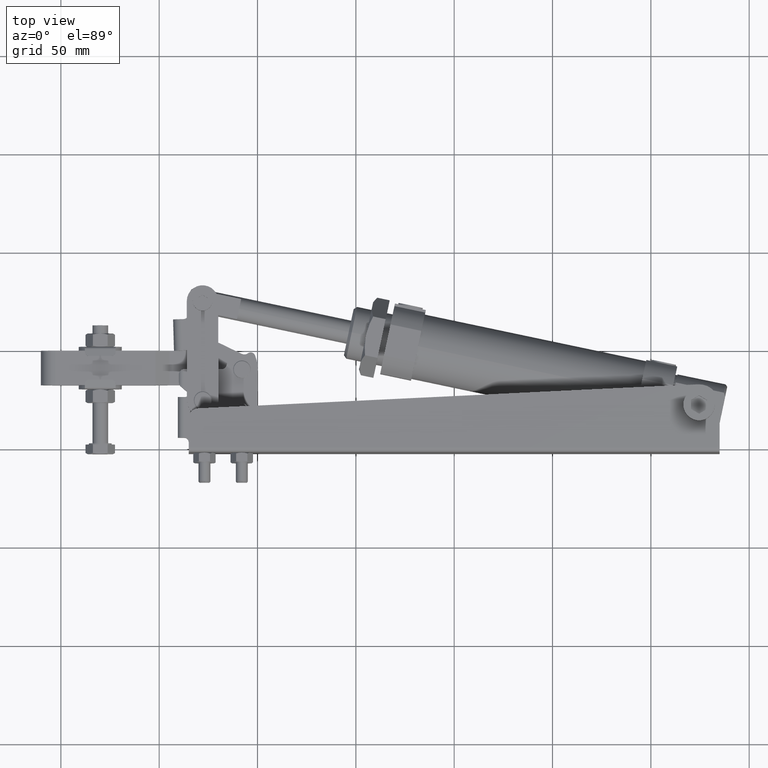
[diagram: clean part render]
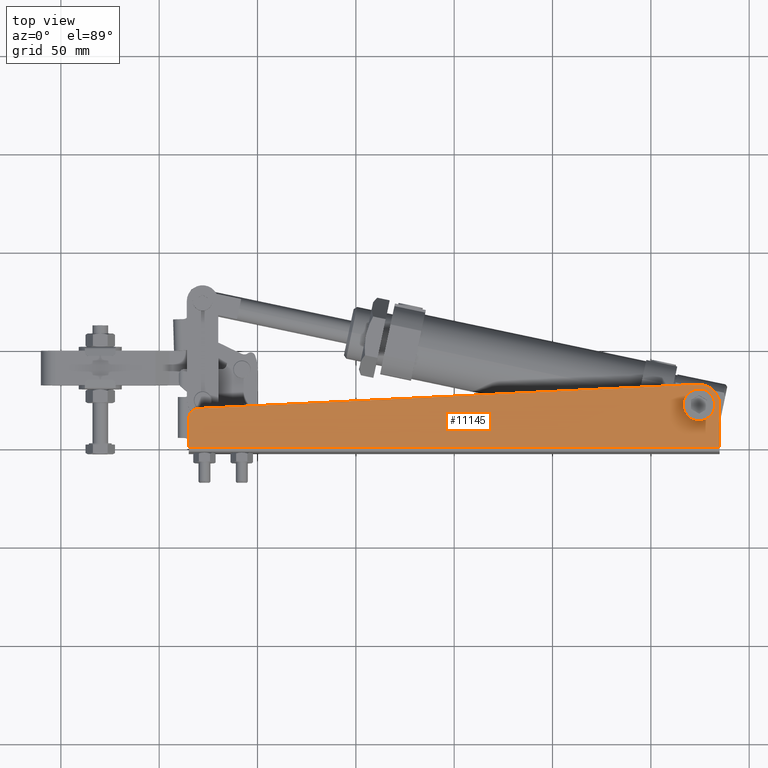
[diagram: same view with one face highlighted and labeled with its STEP entity id]
A machine part, top view. The second image highlights one B-rep face of the part: STEP entity #11145.
In plain terms, the highlighted planar face has unit normal (0, -0, 1).
Its self-contained STEP definition (entity closure, byte-faithful):
#187 = AXIS2_PLACEMENT_3D ( 'NONE', #20374, #8923, #22307 ) ;
#282 = ORIENTED_EDGE ( 'NONE', *, *, #981, .T. ) ;
#517 = ORIENTED_EDGE ( 'NONE', *, *, #21372, .F. ) ;
#951 = DIRECTION ( 'NONE',  ( 0.0000000000000000000, 1.000000000000000000, 3.903127820947816000E-016 ) ) ;
#981 = EDGE_CURVE ( 'NONE', #4013, #8115, #15467, .T. ) ;
#1829 = VERTEX_POINT ( 'NONE', #3790 ) ;
#3075 = LINE ( 'NONE', #6714, #8769 ) ;
#3279 = CARTESIAN_POINT ( 'NONE',  ( 235.0000000000000300, 0.009999999999999158900, 29.50000000000000400 ) ) ;
#3300 = CARTESIAN_POINT ( 'NONE',  ( 235.0000000000000300, -2.500000000000000000, 29.50000000000000400 ) ) ;
#3790 = CARTESIAN_POINT ( 'NONE',  ( -30.24080306760668100, 19.72947212257575300, 29.50000000000003200 ) ) ;
#4013 = VERTEX_POINT ( 'NONE', #3279 ) ;
#4150 = DIRECTION ( 'NONE',  ( 1.047705889746656300E-031, -6.468659422812296800E-029, 1.000000000000000000 ) ) ;
#4308 = CARTESIAN_POINT ( 'NONE',  ( 216.5000000000021600, 21.49999999997848500, 29.50000000000017800 ) ) ;
#4638 = ORIENTED_EDGE ( 'NONE', *, *, #6764, .F. ) ;
#5139 = DIRECTION ( 'NONE',  ( -1.000000000000000000, -0.0000000000000000000, -0.0000000000000000000 ) ) ;
#5283 = CIRCLE ( 'NONE', #23614, 8.000000000000007100 ) ;
#5596 = AXIS2_PLACEMENT_3D ( 'NONE', #6469, #19813, #8382 ) ;
#5810 = CARTESIAN_POINT ( 'NONE',  ( 223.9943135580259100, 31.98781584613324800, 29.50000000000003200 ) ) ;
#5813 = EDGE_CURVE ( 'NONE', #14110, #13815, #5283, .T. ) ;
#5823 = CARTESIAN_POINT ( 'NONE',  ( -29.99999999999998900, 14.73527410060754100, 29.50000000000001100 ) ) ;
#6044 = DIRECTION ( 'NONE',  ( 1.047705889746656300E-031, -6.468659422812296800E-029, 1.000000000000000000 ) ) ;
#6469 = CARTESIAN_POINT ( 'NONE',  ( 224.5000000000000300, 21.50000000000000000, 29.50000000000003200 ) ) ;
#6714 = CARTESIAN_POINT ( 'NONE',  ( -34.99999999999999300, -2.500000000000000000, 29.50000000000000400 ) ) ;
#6764 = EDGE_CURVE ( 'NONE', #13815, #14110, #23460, .T. ) ;
#7726 = DIRECTION ( 'NONE',  ( 0.0000000000000000000, -1.000000000000000000, -6.938893903907229400E-016 ) ) ;
#8115 = VERTEX_POINT ( 'NONE', #18516 ) ;
#8382 = DIRECTION ( 'NONE',  ( -1.000000000000000000, 0.0000000000000000000, 0.0000000000000000000 ) ) ;
#8769 = VECTOR ( 'NONE', #951, 1000.000000000000000 ) ;
#8908 = EDGE_CURVE ( 'NONE', #8115, #16567, #16023, .T. ) ;
#8923 = DIRECTION ( 'NONE',  ( 0.0000000000000000000, -3.903127820947816000E-016, 1.000000000000000000 ) ) ;
#9366 = VECTOR ( 'NONE', #15748, 1000.000000000000100 ) ;
#10132 = ORIENTED_EDGE ( 'NONE', *, *, #13695, .T. ) ;
#10183 = FACE_BOUND ( 'NONE', #21797, .T. ) ;
#10933 = ORIENTED_EDGE ( 'NONE', *, *, #22765, .F. ) ;
#11145 = ADVANCED_FACE ( 'NONE', ( #10183, #20352 ), #20290, .T. ) ;
#11351 = VERTEX_POINT ( 'NONE', #18925 ) ;
#11769 = CARTESIAN_POINT ( 'NONE',  ( -34.99999999999999300, 0.009999999999999158900, 29.50000000000000400 ) ) ;
#12396 = ORIENTED_EDGE ( 'NONE', *, *, #8908, .T. ) ;
#13695 = EDGE_CURVE ( 'NONE', #1829, #11351, #18796, .T. ) ;
#13815 = VERTEX_POINT ( 'NONE', #4308 ) ;
#14046 = EDGE_LOOP ( 'NONE', ( #19239, #10132, #10933, #517, #282, #12396 ) ) ;
#14110 = VERTEX_POINT ( 'NONE', #21635 ) ;
#14386 = DIRECTION ( 'NONE',  ( 0.0000000000000000000, 1.000000000000000000, 3.903127820947816000E-016 ) ) ;
#14645 = CARTESIAN_POINT ( 'NONE',  ( 235.0000000000000300, 0.009999999999999158900, 29.50000000000000400 ) ) ;
#15467 = LINE ( 'NONE', #3300, #19946 ) ;
#15579 = CARTESIAN_POINT ( 'NONE',  ( 224.5000000000021600, 21.49999999997768900, 29.50000000000017800 ) ) ;
#15748 = DIRECTION ( 'NONE',  ( -0.9988396043936425000, -0.04816061352133832500, -0.0000000000000000000 ) ) ;
#16023 = CIRCLE ( 'NONE', #5596, 10.50000000000003700 ) ;
#16249 = AXIS2_PLACEMENT_3D ( 'NONE', #5823, #19163, #7726 ) ;
#16398 = AXIS2_PLACEMENT_3D ( 'NONE', #15579, #4150, #17487 ) ;
#16567 = VERTEX_POINT ( 'NONE', #5810 ) ;
#17211 = VECTOR ( 'NONE', #5139, 1000.000000000000000 ) ;
#17462 = CARTESIAN_POINT ( 'NONE',  ( 224.5000000000021600, 21.49999999997768900, 29.50000000000017800 ) ) ;
#17487 = DIRECTION ( 'NONE',  ( 1.000000000000000000, -9.931291899967211800E-014, 0.0000000000000000000 ) ) ;
#17838 = LINE ( 'NONE', #14645, #17211 ) ;
#18516 = CARTESIAN_POINT ( 'NONE',  ( 235.0000000000000300, 21.50000000000000000, 29.50000000000003200 ) ) ;
#18796 = CIRCLE ( 'NONE', #16249, 4.999999999999999100 ) ;
#18925 = CARTESIAN_POINT ( 'NONE',  ( -34.99999999999999300, 14.73527410060754100, 29.50000000000000700 ) ) ;
#19163 = DIRECTION ( 'NONE',  ( 0.0000000000000000000, -3.903127820947816000E-016, 1.000000000000000000 ) ) ;
#19239 = ORIENTED_EDGE ( 'NONE', *, *, #22653, .T. ) ;
#19383 = DIRECTION ( 'NONE',  ( 1.000000000000000000, -9.931291899967211800E-014, 0.0000000000000000000 ) ) ;
#19521 = LINE ( 'NONE', #21596, #9366 ) ;
#19813 = DIRECTION ( 'NONE',  ( 0.0000000000000000000, 0.0000000000000000000, 1.000000000000000000 ) ) ;
#19946 = VECTOR ( 'NONE', #14386, 1000.000000000000000 ) ;
#20290 = PLANE ( 'NONE',  #187 ) ;
#20352 = FACE_OUTER_BOUND ( 'NONE', #14046, .T. ) ;
#20374 = CARTESIAN_POINT ( 'NONE',  ( 235.0000000000000300, -2.500000000000000000, 29.50000000000000400 ) ) ;
#21372 = EDGE_CURVE ( 'NONE', #4013, #23108, #17838, .T. ) ;
#21596 = CARTESIAN_POINT ( 'NONE',  ( -34.99999999999999300, 19.50000000000000000, 29.50000000000003200 ) ) ;
#21635 = CARTESIAN_POINT ( 'NONE',  ( 232.5000000000021900, 21.49999999997689700, 29.50000000000017800 ) ) ;
#21797 = EDGE_LOOP ( 'NONE', ( #4638, #24577 ) ) ;
#22307 = DIRECTION ( 'NONE',  ( 0.0000000000000000000, -1.000000000000000000, -3.903127820947816000E-016 ) ) ;
#22653 = EDGE_CURVE ( 'NONE', #16567, #1829, #19521, .T. ) ;
#22765 = EDGE_CURVE ( 'NONE', #23108, #11351, #3075, .T. ) ;
#23108 = VERTEX_POINT ( 'NONE', #11769 ) ;
#23460 = CIRCLE ( 'NONE', #16398, 8.000000000000007100 ) ;
#23614 = AXIS2_PLACEMENT_3D ( 'NONE', #17462, #6044, #19383 ) ;
#24577 = ORIENTED_EDGE ( 'NONE', *, *, #5813, .F. ) ;